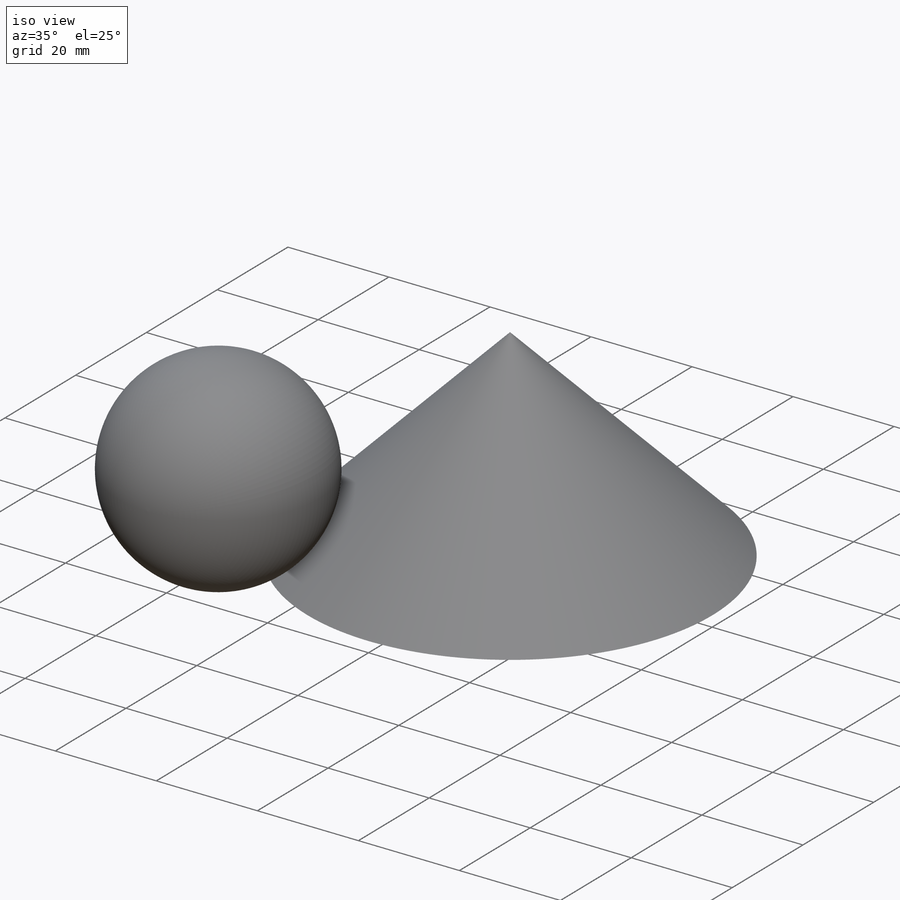
[diagram: iso view]
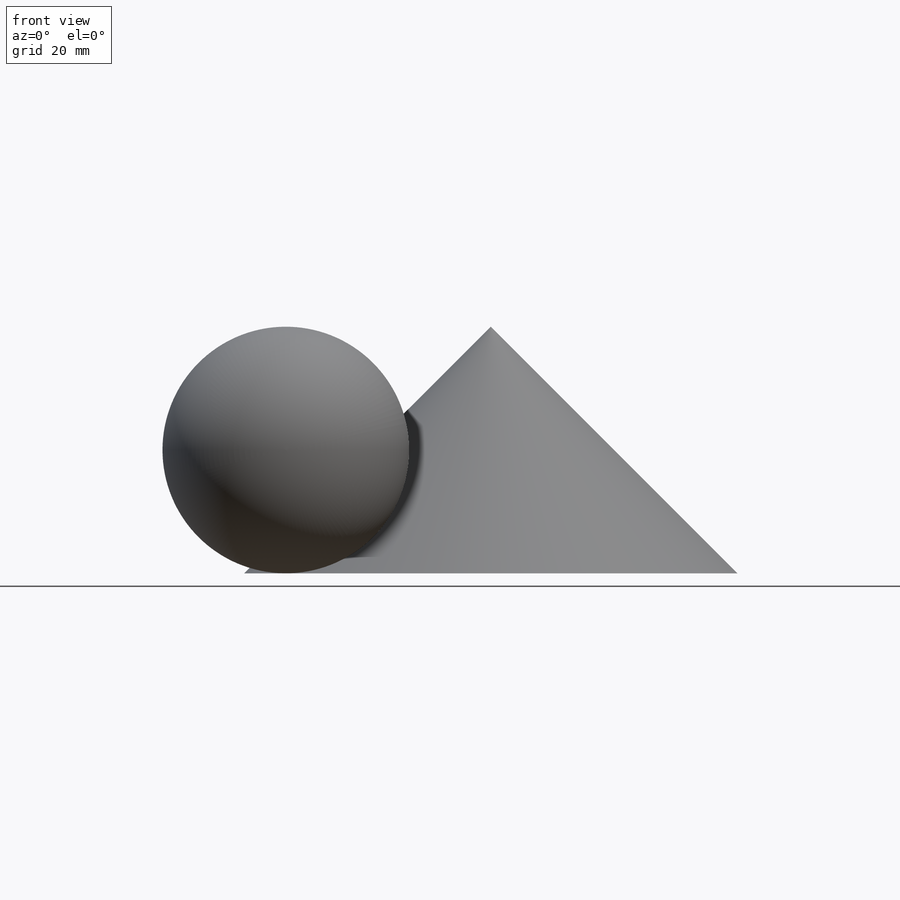
[diagram: front view]
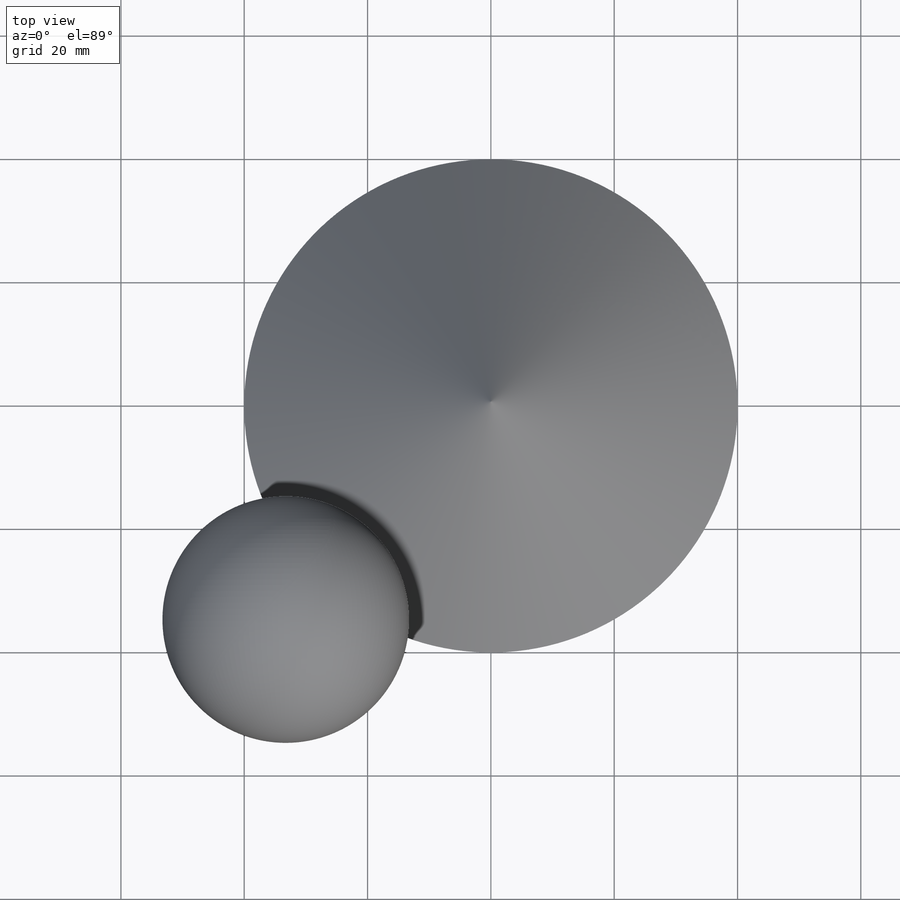
[diagram: top view]
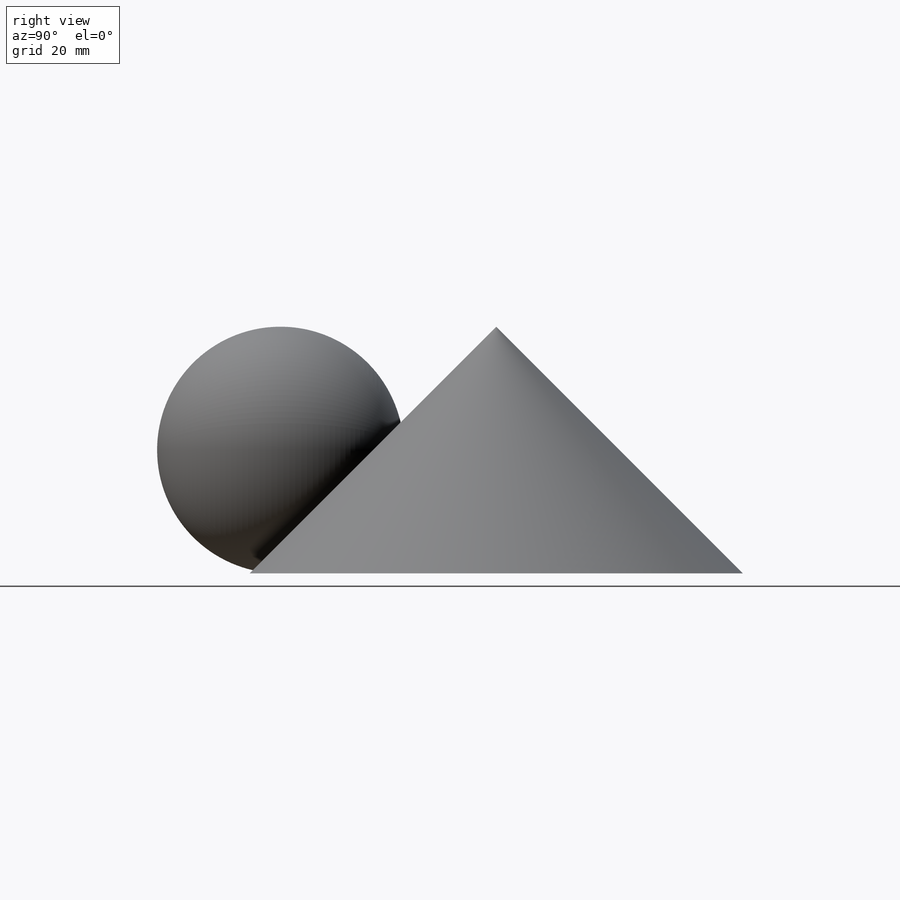
[diagram: right view]
SOLIDWORKS PART (.sldprt)
format: sldprt  version: not decoded by parser v0  size: 652,288 bytes
history: native  units: mm
features: sketch x6, plane x2, revolve x2, material x1 (+14 scaffold rows collapsed)
feature tree (25):
  scaffold x14  (default folders/planes/origin — collapsed)
  material  "Material <not specified>"
  sketch  "Sketch1"  dims[D1=80.0mm]
  sketch  "Sketch2"  dims[D1=40.0mm]
  plane  "Plane1"  Offset=20mm
  sketch  "Sketch4"  dims[D1=40.0mm]
  sketch  "Sketch5"  dims[D2=40.0mm D1=35.0mm]
  revolve  "Revolve1"  Angle=360deg
  sketch  "Sketch6"  dims[c1.D1=28.0mm c1.D2=~47.981425mm c2.D2=30.0deg]
  plane  "Plane2"
  sketch  "Sketch8"  dims[D1=~32.331615mm]
  revolve  "Revolve2"  Angle=360deg
decode coverage: 8 of 8 modeling features carry decoded parameters
note: ~ marks probable driven/reference dimensions
note: suppression state not decoded; provenance and decode notes live in map.json
